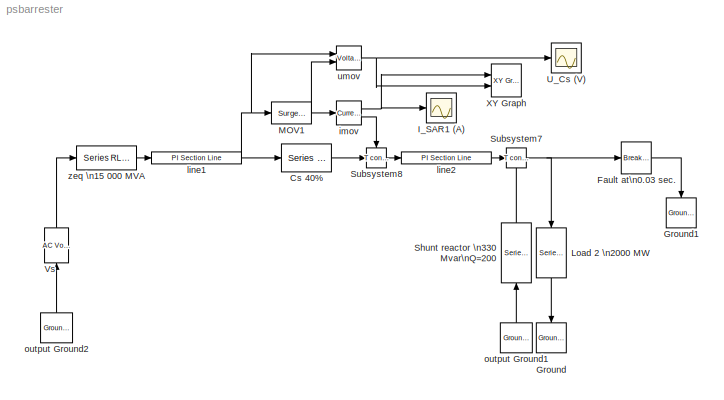
MODEL psbarrester
KIND model
BLOCK [Reference]  MOV1  REF=powerlib2/Elements/Surge Arrester
  PSBOutputType = 1
  Ports = [1, 1]
  SourceBlock = powerlib2/Elements/Surge Arrester
  SourceType = Surge Arrester
  Tag = PoWeRsYsTeMbLoCk
  mesure = None
  x1 = 185e3
  x2 = 30
  x3 = 500
  x4 = [.955 50]
  x5 = [1.0 25]
  x6 = [.9915 16.5]
BLOCK [Reference] Cs 40%  REF=powerlib2/Elements/Series RLC Branch
  PSBOutputType = 1
  Ports = [1, 1]
  SourceBlock = powerlib2/Elements/Series RLC Branch
  SourceType = Series RLC Branch
  Tag = PoWeRsYsTeMbLoCk
  a = 0
  b = 0
  c = 101.4e-6
  mesure = None
BLOCK [Reference] Fault at\n0.03 sec.  REF=powerlib2/Elements/Breaker
  PSBOutputType = 1
  Ports = [1, 1]
  SourceBlock = powerlib2/Elements/Breaker
  SourceType = Breaker
  Tag = PoWeRsYsTeMbLoCk
  Ts = 0
  a = 1
  c = 0
  comext = off
  cs = 0
  mesure = None
  rs = inf
  times = [ 30e-3  300e-3 ]
BLOCK [Reference] Ground  REF=powerlib2/Connectors/Ground (input)
  Ports = [1]
  SourceBlock = powerlib2/Connectors/Ground (input)
  SourceType = Ground
  Tag = PoWeRsYsTeMbLoCk
BLOCK [Reference] Ground1  REF=powerlib2/Connectors/Ground (input)
  Ports = [1]
  SourceBlock = powerlib2/Connectors/Ground (input)
  SourceType = Ground
  Tag = PoWeRsYsTeMbLoCk
BLOCK [Scope] I_SAR1 (A)
  DataFormat = Array
  MaxDataPoints = 500000
  NumInputPorts = 1
  Ports = [1]
  TickLabels = on
  TimeRange = 0.1
  YMax = 10000
  YMin = -5000
BLOCK [Reference] Load 2 \n2000 MW  REF=powerlib2/Elements/Series RLC Load
  PSBOutputType = 1
  Ports = [1, 1]
  SourceBlock = powerlib2/Elements/Series RLC Load
  SourceType = Series RLC Load
  Tag = PoWeRsYsTeMbLoCk
  a = 735e3/sqrt(3)
  b = 60
  c = 2000e6/3
  d = 0
  e = 0
  mesure = None
BLOCK [Reference] Shunt reactor \n330 Mvar\nQ=200  REF=powerlib2/Elements/Series RLC Load
  PSBOutputType = 1
  Ports = [1, 1]
  SourceBlock = powerlib2/Elements/Series RLC Load
  SourceType = Series RLC Load
  Tag = PoWeRsYsTeMbLoCk
  a = 735e3/sqrt(3)
  b = 60
  c = 330e6/3/200
  d = 330e6/3
  e = 0
  mesure = None
BLOCK [Reference] Subsystem7  REF=powerlib2/Connectors/T connector
  PSBOutputType = 1
  Ports = [1, 1, 1]
  SourceBlock = powerlib2/Connectors/T connector
  SourceType = Bus Bar
  Tag = PoWeRsYsTeMbLoCk
BLOCK [Reference] Subsystem8  REF=powerlib2/Connectors/T connector
  PSBOutputType = 1
  Ports = [1, 1, 1]
  SourceBlock = powerlib2/Connectors/T connector
  SourceType = Bus Bar
  Tag = PoWeRsYsTeMbLoCk
BLOCK [Scope] U_Cs (V)
  DataFormat = Array
  MaxDataPoints = 500000
  NumInputPorts = 1
  Ports = [1]
  TickLabels = on
  TimeRange = 0.1
  YMax = 200000
  YMin = -200000
BLOCK [Reference] Vs  REF=powerlib2/Electrical\nSources/AC Voltage Source
  A = 735e3/sqrt(3)*sqrt(2)
  F = 60
  P = 0
  PSBOutputType = 1
  Ports = [1, 1]
  SourceBlock = powerlib2/Electrical\nSources/AC Voltage Source
  SourceType = AC Voltage Source
  Tag = PoWeRsYsTeMbLoCk
  mesure = None
  stime = 0
BLOCK [Reference] XY Graph  REF=simulink/Sinks/XY Graph
  Ports = [2]
  SourceBlock = simulink/Sinks/XY Graph
  SourceType = XY scope.
  st = -1
  xmax = 6000
  xmin = -6000
  ymax = 2e5
  ymin = -2e5
BLOCK [Reference] imov  REF=powerlib2/Measurements/Current Measurement
  OutputType = Magnitude
  PSBOutputType = 01
  PSBequivalent = 0
  PhasorSimulation = off
  Ports = [1, 2]
  SourceBlock = powerlib2/Measurements/Current Measurement
  SourceType = Current Measurement
  Tag = PoWeRsYsTeMmEaSuReMeNt
BLOCK [Reference] line1  REF=powerlib2/Elements/PI Section Line
  PSBOutputType = 1
  Ports = [1, 1]
  SourceBlock = powerlib2/Elements/PI Section Line
  SourceType = Pi Section Line
  Tag = PoWeRsYsTeMbLoCk
  a = 0.011
  b = 0.8674e-3
  c = 13.41e-9
  d = 100
  e = 2
  f = 60
  mesure = None
BLOCK [Reference] line2  REF=powerlib2/Elements/PI Section Line
  PSBOutputType = 1
  Ports = [1, 1]
  SourceBlock = powerlib2/Elements/PI Section Line
  SourceType = Pi Section Line
  Tag = PoWeRsYsTeMbLoCk
  a = 0.011
  b = 0.8674e-3
  c = 13.41e-9
  d = 100
  e = 2
  f = 60
  mesure = None
BLOCK [Reference] output Ground1  REF=powerlib2/Connectors/Ground (output)
  PSBOutputType = 1
  Ports = [0, 1]
  SourceBlock = powerlib2/Connectors/Ground (output)
  SourceType = Ground
  Tag = PoWeRsYsTeMbLoCk
BLOCK [Reference] output Ground2  REF=powerlib2/Connectors/Ground (output)
  PSBOutputType = 1
  Ports = [0, 1]
  SourceBlock = powerlib2/Connectors/Ground (output)
  SourceType = Ground
  Tag = PoWeRsYsTeMbLoCk
BLOCK [Reference] umov  REF=powerlib2/Measurements/Voltage Measurement
  OutputType = Magnitude
  PSBOutputType = 0
  PSBequivalent = 0
  PhasorSimulation = off
  Ports = [2, 1]
  SourceBlock = powerlib2/Measurements/Voltage Measurement
  SourceType = Voltage Measurement
  Tag = PoWeRsYsTeMmEaSuReMeNt
BLOCK [Reference] zeq \n15 000 MVA  REF=powerlib2/Elements/Series RLC Branch
  PSBOutputType = 1
  Ports = [1, 1]
  SourceBlock = powerlib2/Elements/Series RLC Branch
  SourceType = Series RLC Branch
  Tag = PoWeRsYsTeMbLoCk
  a = 3.6
  b = 95.5e-3
  c = inf
  mesure = None
NET  MOV1:1 -> imov:1, umov:2
LINE Cs 40%:1 -> Subsystem8:1
LINE Fault at\n0.03 sec.:1 -> Ground1:1
LINE Load 2 \n2000 MW:1 -> Ground:1
LINE Shunt reactor \n330 Mvar\nQ=200:1 -> Subsystem7:enable
NET Subsystem7:1 -> Fault at\n0.03 sec.:1, Load 2 \n2000 MW:1
LINE Subsystem8:1 -> line2:1
LINE Vs:1 -> zeq \n15 000 MVA:1
NET imov:1 -> I_SAR1 (A):1, XY Graph:1
LINE imov:2 -> Subsystem8:enable
NET line1:1 ->  MOV1:1, Cs 40%:1, umov:1
LINE line2:1 -> Subsystem7:1
LINE output Ground1:1 -> Shunt reactor \n330 Mvar\nQ=200:1
LINE output Ground2:1 -> Vs:1
NET umov:1 -> U_Cs (V):1, XY Graph:2
LINE zeq \n15 000 MVA:1 -> line1:1
note: NET lines group one-source signal fan-out (src -> all destinations, sorted); 1:1 wires keep LINE
